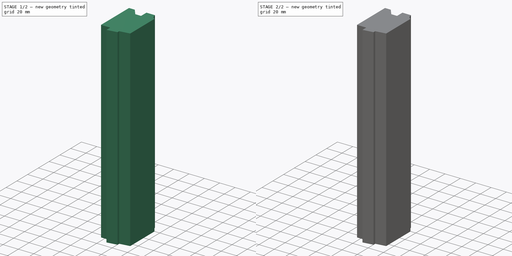
[diagram: build sequence overview — one tinted view per stage of 2, left to right]
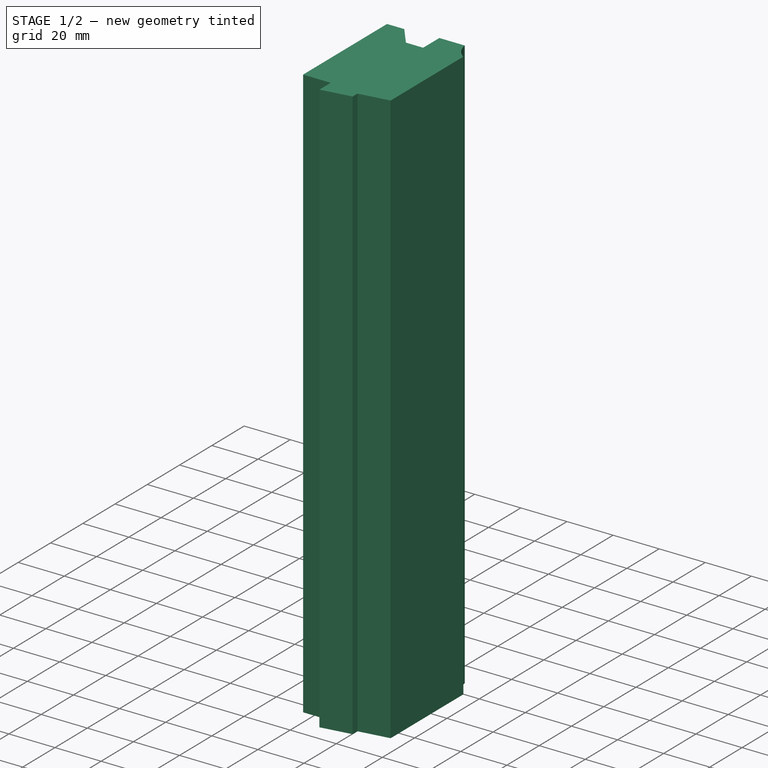
[diagram: stage 1 of 2 — iso view after this stage's code; geometry added in this stage tinted green]
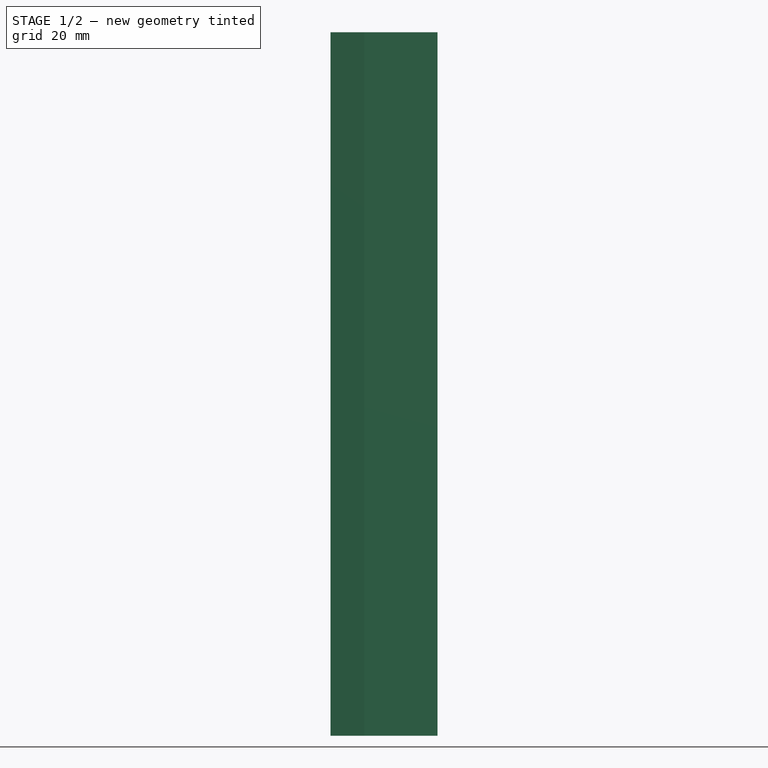
[diagram: stage 1 of 2 — front view after this stage's code; geometry added in this stage tinted green]
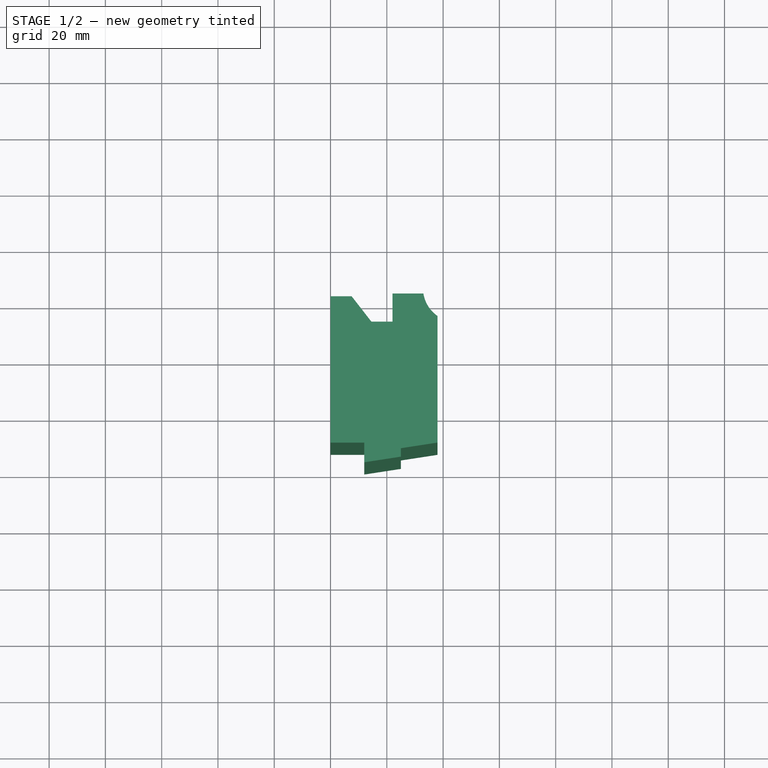
[diagram: stage 1 of 2 — top view after this stage's code; geometry added in this stage tinted green]
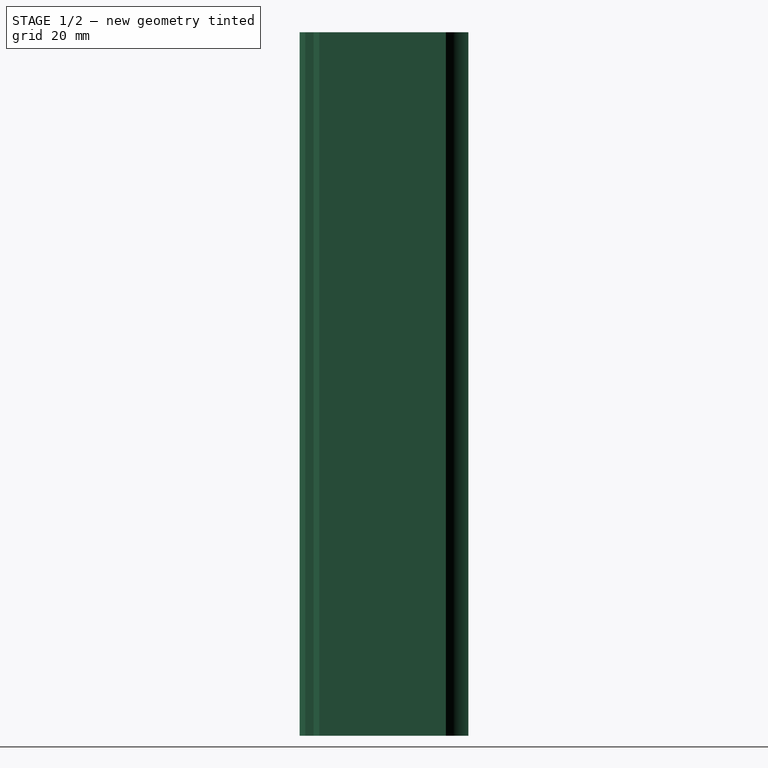
[diagram: stage 1 of 2 — right view after this stage's code; geometry added in this stage tinted green]
FCSTD DOCUMENT  (FreeCAD 2022.709R28846 (Git))
Label: fensterrahmen_hinternute
License: All rights reserved
LicenseURL: http://en.wikipedia.org/wiki/All_rights_reserved
objects: Sketcher::SketchObject×2, PartDesign::Pad×1, PartDesign::Pocket×1, PartDesign::Body×1
note: 9 computed .brp shape members not serialized (recipe doc carries the construction recipe); baked Part::Feature solids carry a one-line shape summary decoded from their .brp

FEATURE [Sketcher::SketchObject] Sketch
  ArcFitTolerance = 1e-06
  AttachmentSupport = -> [XY_Plane]
  FullyConstrained = true
  MapMode = 5
  Support = -> [XY_Plane]
  TreeRank = 13
  sketch-geometry (13):
    g0: LineSegment StartX=0 StartY=0 StartZ=0 EndX=7.5 EndY=0 EndZ=0
    g1: LineSegment StartX=7.5 StartY=0 StartZ=0 EndX=14.5 EndY=-9 EndZ=0
    g2: LineSegment StartX=14.5 StartY=-9 StartZ=0 EndX=22 EndY=-9 EndZ=0
    g3: LineSegment StartX=22 StartY=-9 StartZ=0 EndX=22 EndY=1 EndZ=0
    g4: LineSegment StartX=22 StartY=1 StartZ=0 EndX=33 EndY=1 EndZ=0
    g5: ArcOfCircle CenterX=44.8568 CenterY=2.84803 CenterZ=0 NormalX=0 NormalY=0 NormalZ=1 AngleXU=0 Radius=12 StartAngle=3.29621 EndAngle=4.10417
    g6: LineSegment StartX=38 StartY=-7 StartZ=0 EndX=38 EndY=-52 EndZ=0
    g7: LineSegment StartX=38 StartY=-52 StartZ=0 EndX=25 EndY=-54 EndZ=0
    g8: LineSegment StartX=25 StartY=-54 StartZ=0 EndX=25 EndY=-57 EndZ=0
    g9: LineSegment StartX=25 StartY=-57 StartZ=0 EndX=12 EndY=-59 EndZ=0
    g10: LineSegment StartX=12 StartY=-59 StartZ=0 EndX=12 EndY=-52 EndZ=0
    g11: LineSegment StartX=12 StartY=-52 StartZ=0 EndX=0 EndY=-52 EndZ=0
    g12: LineSegment StartX=0 StartY=-52 StartZ=0 EndX=0 EndY=0 EndZ=0
  constraints (39):
    c: Coincident(g-1,g0)
    c: PointOnObject(g0,g-1)
    c: Coincident(g0,g1)
    c: Coincident(g1,g2)
    c: Horizontal(g2)
    c: Coincident(g2,g3)
    c: Vertical(g3)
    c: Coincident(g3,g4)
    c: Horizontal(g4)
    c: Coincident(g5,g6)
    c: Vertical(g6)
    c: Coincident(g6,g7)
    c: Coincident(g7,g8)
    c: Vertical(g8)
    c: Coincident(g8,g9)
    c: Coincident(g9,g10)
    c: Vertical(g10)
    c: Coincident(g10,g11)
    c: PointOnObject(g11,g-2)
    c: Horizontal(g11)
    c: Coincident(g11,g12)
    c: Coincident(g12,g0)
    c: DistanceX(g11,g11) = 12
    c: DistanceX(g9,g9) = 13
    c: DistanceX(g0,g0) = 7.5
    c: Equal(g2,g0)
    c: DistanceY(g0,g3) = 1
    c: Radius(g5) = 12
    c: DistanceX(g4,g5) = 5
    c: Coincident(g5,g4)
    c: DistanceY(g5,g4) = 8
    c: DistanceY(g6,g5) = 45
    c: DistanceY(g7,g6) = 2
    c: DistanceY(g8,g7) = 3
    c: DistanceY(g9,g8) = 2
    c: DistanceX(g0,g3) = 22
    c: DistanceX(g7,g6) = 13
    c: DistanceY(g9,g10) = 7
    c: DistanceY(g2,g3) = 10
FEATURE [PartDesign::Pad] Pad
  ClaimChildren = false
  Direction = (1,1,1)
  Fit = 0
  FitJoin = 0
  InnerFit = 0
  InnerFitJoin = 0
  InnerTaperAngle = 0
  InnerTaperAngleRev = 0
  Length = 250
  Length2 = 100
  Linearize = true
  NewSolid = false
  Profile = -> Sketch
  Suppress = false
  TreeRank = 14
  Type = 0
  _ProfileBasedVersion = 1
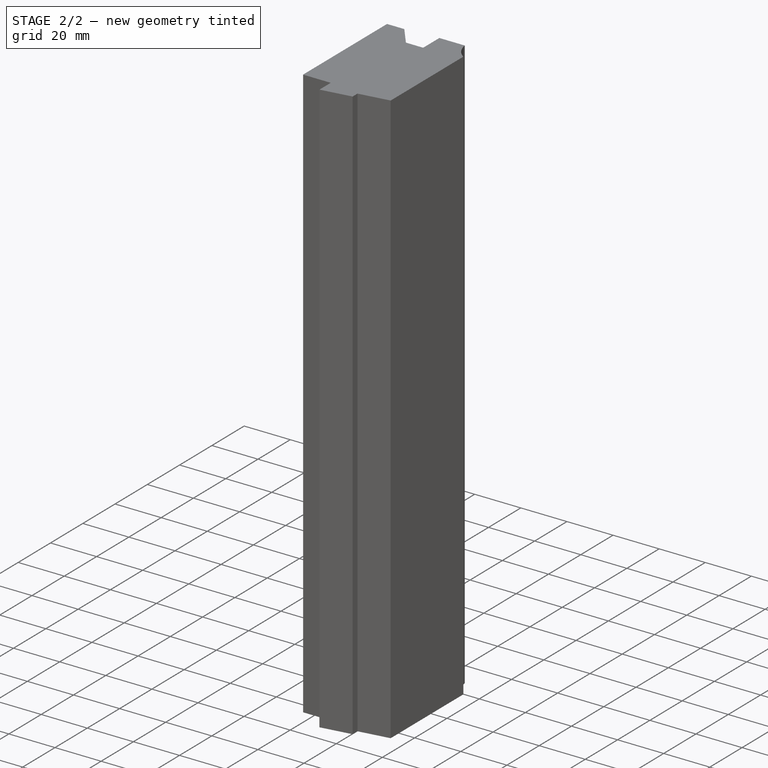
[diagram: stage 2 of 2 — iso view after this stage's code; geometry added in this stage tinted green]
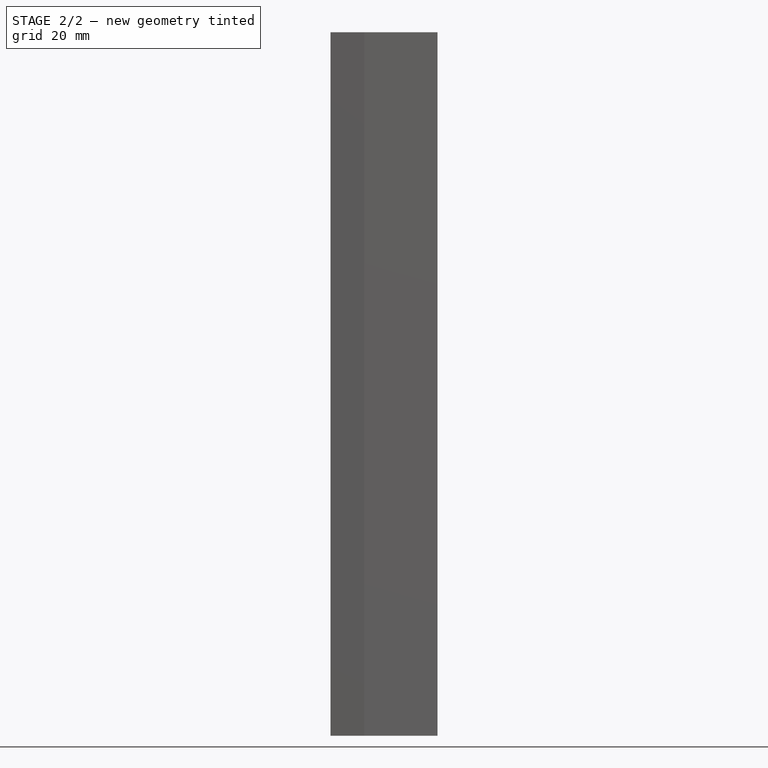
[diagram: stage 2 of 2 — front view after this stage's code; geometry added in this stage tinted green]
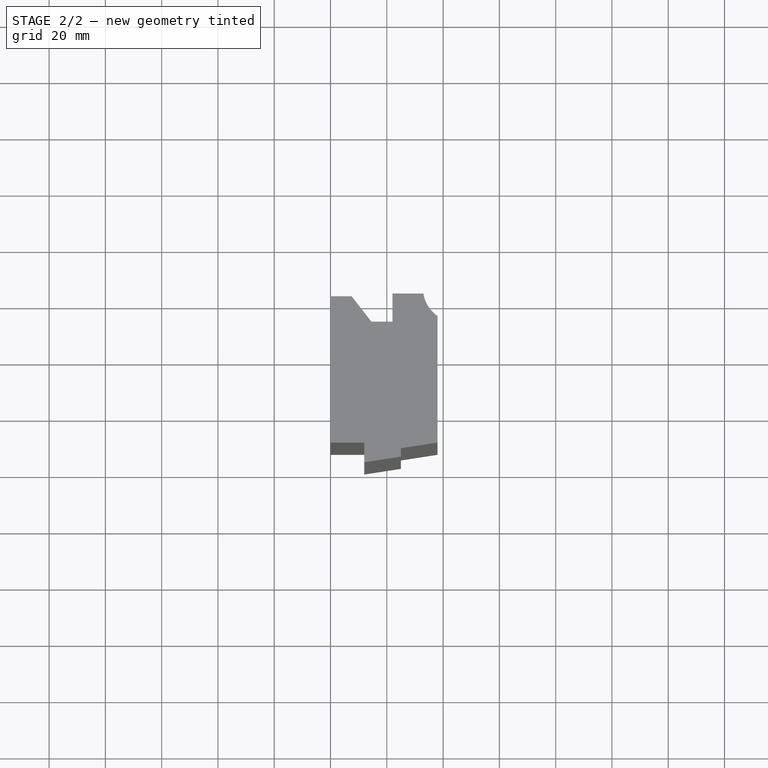
[diagram: stage 2 of 2 — top view after this stage's code; geometry added in this stage tinted green]
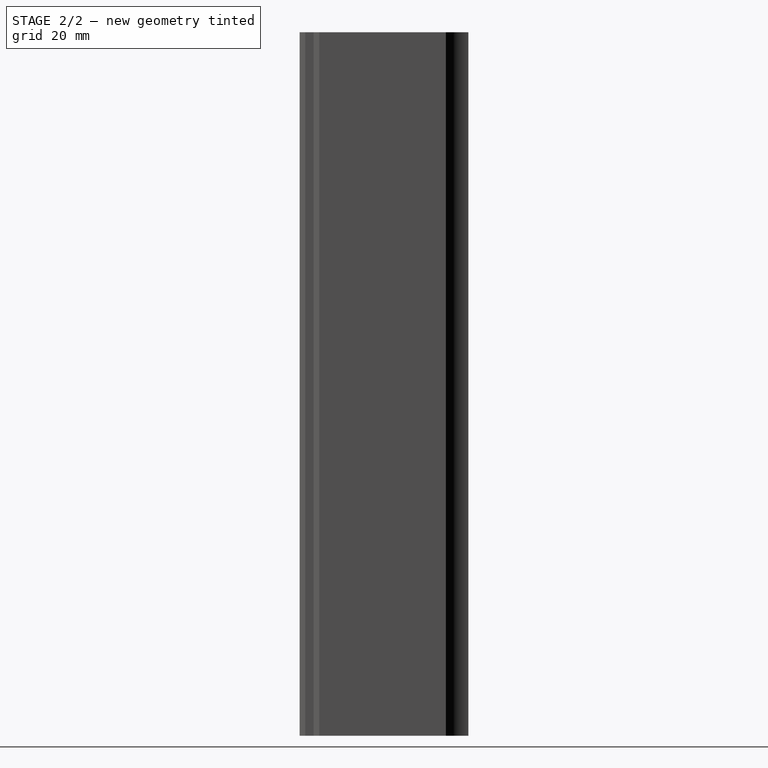
[diagram: stage 2 of 2 — right view after this stage's code; geometry added in this stage tinted green]
FEATURE [Sketcher::SketchObject] Sketch001
  ArcFitTolerance = 1e-06
  AttachmentSupport = -> [Pad]
  ExternalGeometry = -> [Pad]
  FullyConstrained = true
  MapMode = 5
  Placement = pos=(0,1,0) rot=(0,0.707107,0.707107;3.14159rad)
  Support = -> [Pad]
  TreeRank = 15
  sketch-geometry (4):
    g0: LineSegment StartX=-22 StartY=125 StartZ=0 EndX=-24 EndY=125 EndZ=0
    g1: LineSegment StartX=-24 StartY=125 StartZ=0 EndX=-24 EndY=80 EndZ=0
    g2: LineSegment StartX=-24 StartY=80 StartZ=0 EndX=-22 EndY=80 EndZ=0
    g3: LineSegment StartX=-22 StartY=80 StartZ=0 EndX=-22 EndY=125 EndZ=0
  constraints (12):
    c: Coincident(g0,g1)
    c: Coincident(g1,g2)
    c: Coincident(g2,g3)
    c: Coincident(g3,g0)
    c: Horizontal(g0)
    c: Horizontal(g2)
    c: Vertical(g1)
    c: Vertical(g3)
    c: DistanceY(g-1,g0) = 125
    c: DistanceX(g2,g2) = 2
    c: DistanceY(g1,g1) = 45
    c: PointOnObject(g2,g-3)
FEATURE [PartDesign::Pocket] Pocket
  BaseFeature = -> Pad
  ClaimChildren = false
  Fit = 0
  FitJoin = 0
  InnerFit = 0
  InnerFitJoin = 0
  InnerTaperAngle = 0
  InnerTaperAngleRev = 0
  Length = 20
  Length2 = 100
  Linearize = true
  NewSolid = false
  Profile = -> Sketch001
  Refine = true
  Suppress = false
  TreeRank = 16
  Type = 0
  _ProfileBasedVersion = 1
FEATURE [PartDesign::Body] Body
  AutoGroupSolids = false
  ClaimAllChildren = false
  ExportMode = 0
  Group = -> [Sketch,Pad,Sketch001,Pocket]
  Origin = -> Origin
  Tip = -> Pocket
  TreeRank = 12
  _ExportChildren = -> [Pad,Pocket]
  _GroupVersion = 1
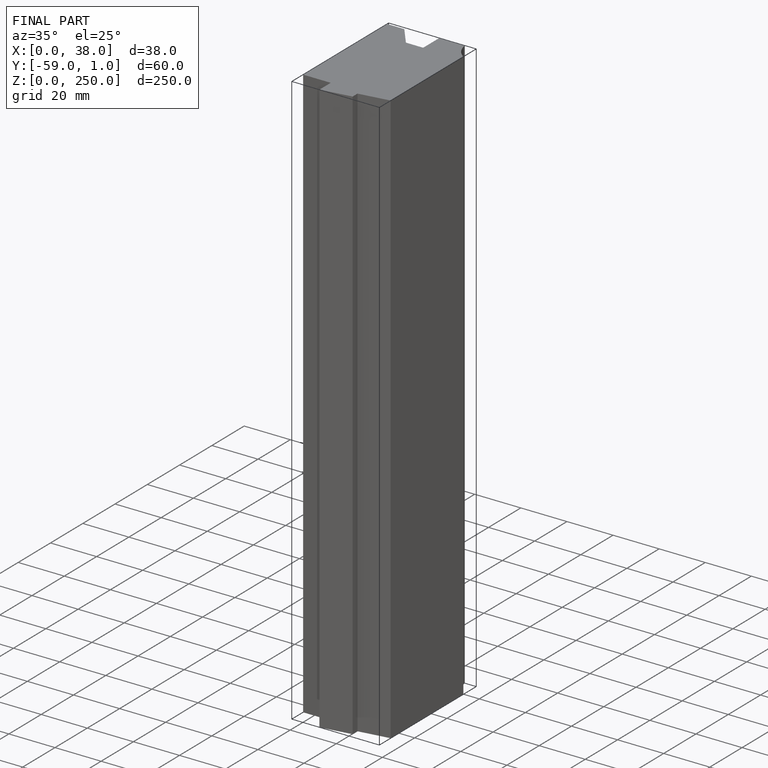
[diagram: finished part — iso view with bounding-box wireframe]
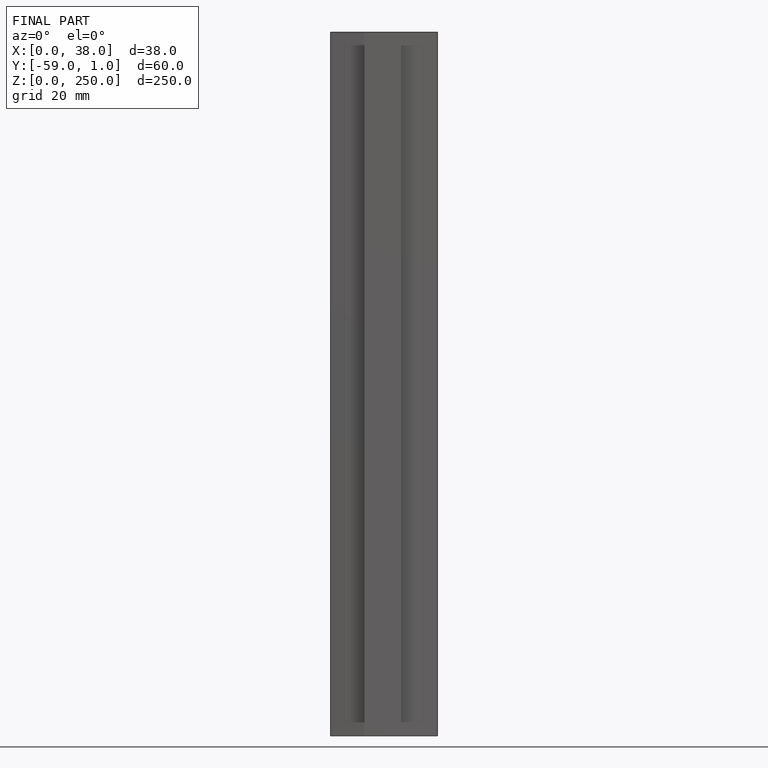
[diagram: finished part — front view with bounding-box wireframe]
